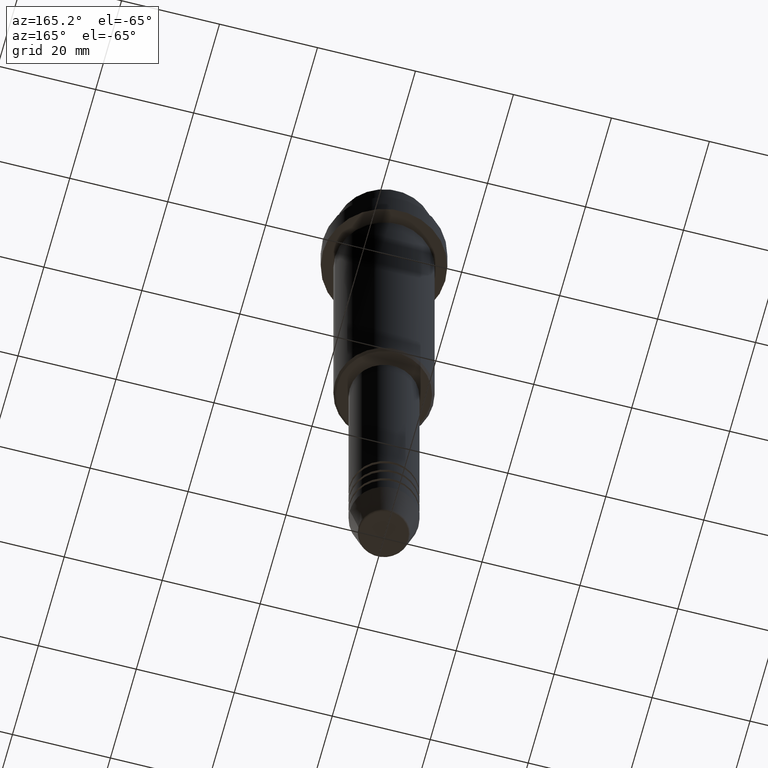
[diagram: clean part render]
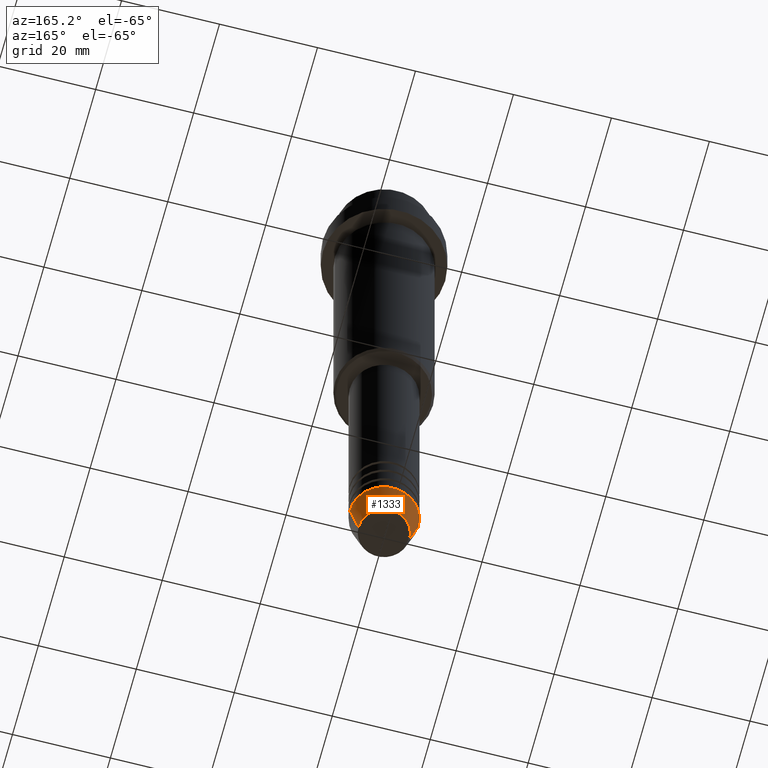
[diagram: same view with one face highlighted and labeled with its STEP entity id]
A machine part, auxiliary view. The second image highlights one B-rep face of the part: STEP entity #1333.
In plain terms, the highlighted conical surface has half-angle 15 deg.
Its self-contained STEP definition (entity closure, byte-faithful):
#6 = DIRECTION ( 'NONE',  ( 0.2588190451025214056, 0.000000000000000000, 0.9659258262890680902 ) ) ;
#8 = EDGE_LOOP ( 'NONE', ( #773, #139, #675, #404 ) ) ;
#37 = CIRCLE ( 'NONE', #589, 7.000000000000000000 ) ;
#69 = LINE ( 'NONE', #185, #652 ) ;
#91 = FACE_OUTER_BOUND ( 'NONE', #8, .T. ) ;
#99 = CARTESIAN_POINT ( 'NONE',  ( 0.000000000000000000, 0.000000000000000000, -139.6294095225512706 ) ) ;
#139 = ORIENTED_EDGE ( 'NONE', *, *, #1267, .T. ) ;
#175 = DIRECTION ( 'NONE',  ( 1.000000000000000000, 0.000000000000000000, 0.000000000000000000 ) ) ;
#185 = CARTESIAN_POINT ( 'NONE',  ( -7.000000000000000000, 8.572527594031473190E-16, -133.0000000000000000 ) ) ;
#192 = AXIS2_PLACEMENT_3D ( 'NONE', #99, #640, #175 ) ;
#199 = VERTEX_POINT ( 'NONE', #489 ) ;
#303 = DIRECTION ( 'NONE',  ( 1.000000000000000000, 0.000000000000000000, 0.000000000000000000 ) ) ;
#305 = VERTEX_POINT ( 'NONE', #926 ) ;
#391 = CARTESIAN_POINT ( 'NONE',  ( 0.000000000000000000, 0.000000000000000000, -133.0000000000000000 ) ) ;
#404 = ORIENTED_EDGE ( 'NONE', *, *, #523, .F. ) ;
#450 = LINE ( 'NONE', #789, #584 ) ;
#456 = CARTESIAN_POINT ( 'NONE',  ( 7.000000000000000000, 0.000000000000000000, -133.0000000000000000 ) ) ;
#473 = AXIS2_PLACEMENT_3D ( 'NONE', #1271, #1378, #303 ) ;
#489 = CARTESIAN_POINT ( 'NONE',  ( 5.223655072137191269, 0.000000000000000000, -139.6294095225512706 ) ) ;
#515 = DIRECTION ( 'NONE',  ( 1.000000000000000000, 0.000000000000000000, 0.000000000000000000 ) ) ;
#523 = EDGE_CURVE ( 'NONE', #199, #682, #450, .T. ) ;
#584 = VECTOR ( 'NONE', #6, 1000.000000000000000 ) ;
#589 = AXIS2_PLACEMENT_3D ( 'NONE', #391, #850, #515 ) ;
#640 = DIRECTION ( 'NONE',  ( -0.000000000000000000, -0.000000000000000000, 1.000000000000000000 ) ) ;
#641 = VERTEX_POINT ( 'NONE', #1351 ) ;
#652 = VECTOR ( 'NONE', #767, 1000.000000000000000 ) ;
#659 = CONICAL_SURFACE ( 'NONE', #473, 7.000000000000000000, 0.2617993877991501295 ) ;
#675 = ORIENTED_EDGE ( 'NONE', *, *, #1345, .F. ) ;
#682 = VERTEX_POINT ( 'NONE', #456 ) ;
#767 = DIRECTION ( 'NONE',  ( -0.2588190451025214056, 3.169619151431772953E-17, 0.9659258262890680902 ) ) ;
#773 = ORIENTED_EDGE ( 'NONE', *, *, #1327, .T. ) ;
#789 = CARTESIAN_POINT ( 'NONE',  ( 7.000000000000000000, 0.000000000000000000, -133.0000000000000000 ) ) ;
#850 = DIRECTION ( 'NONE',  ( -0.000000000000000000, -0.000000000000000000, 1.000000000000000000 ) ) ;
#926 = CARTESIAN_POINT ( 'NONE',  ( -7.000000000000000000, 8.572527594031473190E-16, -133.0000000000000000 ) ) ;
#965 = CIRCLE ( 'NONE', #192, 5.223655072137191269 ) ;
#1267 = EDGE_CURVE ( 'NONE', #641, #305, #69, .T. ) ;
#1271 = CARTESIAN_POINT ( 'NONE',  ( 0.000000000000000000, 0.000000000000000000, -133.0000000000000000 ) ) ;
#1327 = EDGE_CURVE ( 'NONE', #199, #641, #965, .T. ) ;
#1333 = ADVANCED_FACE ( 'NONE', ( #91 ), #659, .T. ) ;
#1345 = EDGE_CURVE ( 'NONE', #682, #305, #37, .T. ) ;
#1351 = CARTESIAN_POINT ( 'NONE',  ( -5.223655072137191269, 7.484830028987061160E-16, -139.6294095225512706 ) ) ;
#1378 = DIRECTION ( 'NONE',  ( -0.000000000000000000, -0.000000000000000000, 1.000000000000000000 ) ) ;